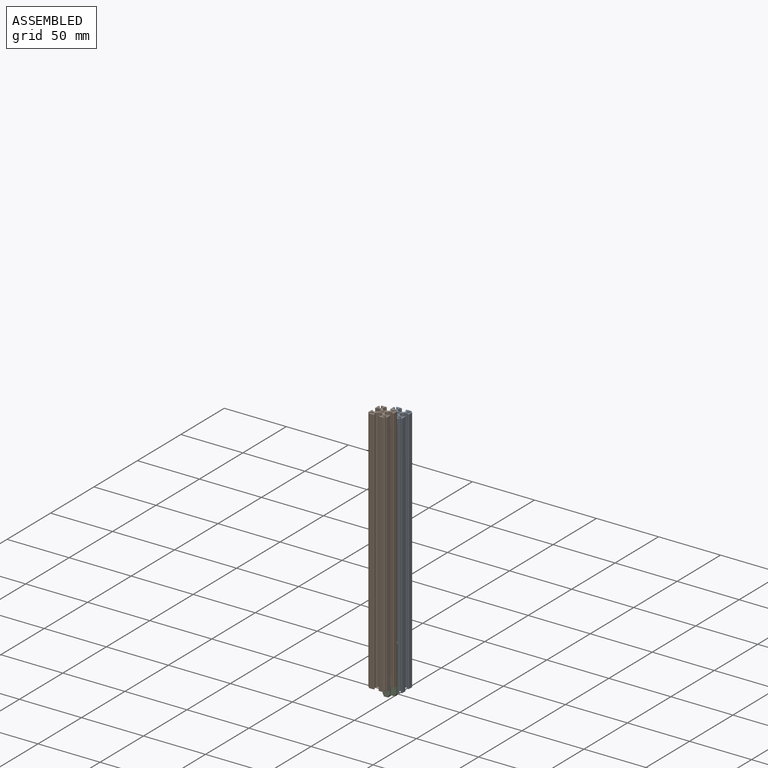
[diagram: assembled view]
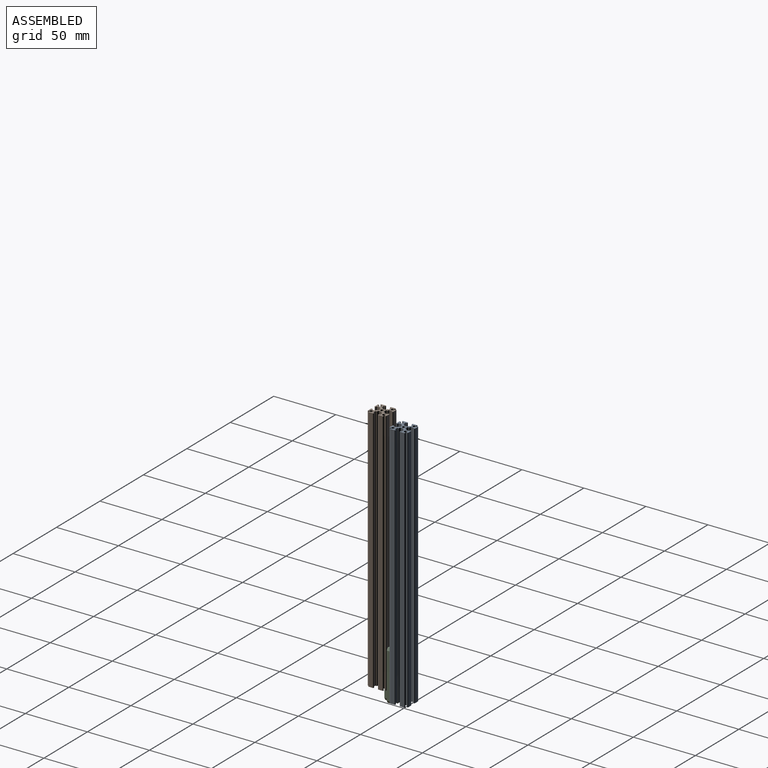
[diagram: assembled view, second angle]
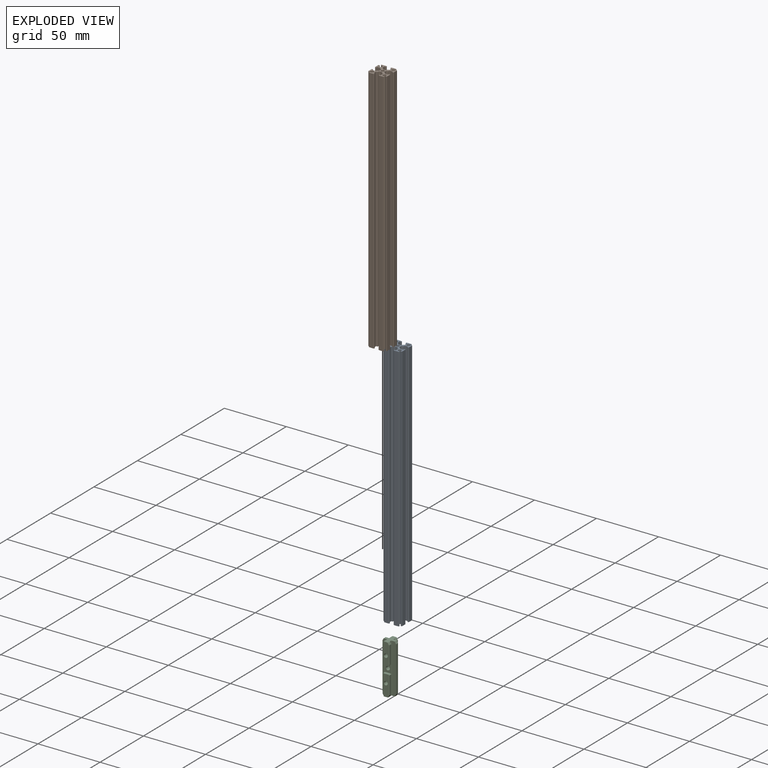
[diagram: exploded view]
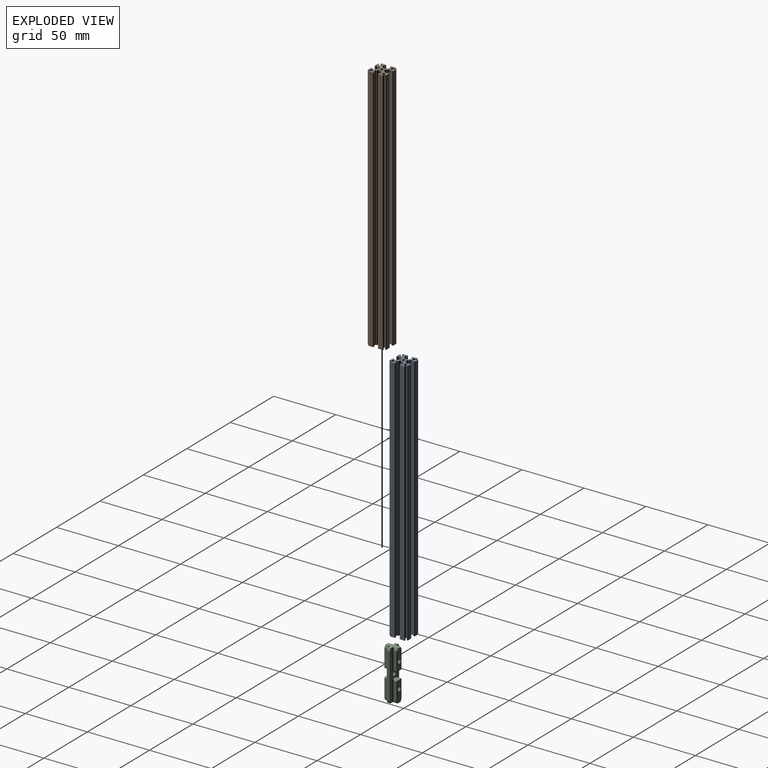
[diagram: exploded view, second angle]
ASSEMBLY  parts=3 mates=3
PART A: 115 faces, bbox 15x15x200 mm
  f0: cylinder r=0.5mm len=200mm, axis (0,0,-1), area 235.6mm2, adj f7,f9,f53,f114
  f1: cylinder r=0.5mm len=200mm, axis (0,0,1), area 235.6mm2, adj f7,f13,f102,f114
  f2: cylinder r=1.25mm len=200mm, axis (0,0,-1), area 1365mm2, adj f7,f104,f105,f114
  f3: cylinder r=1.25mm len=200mm, axis (0,0,-1), area 1365mm2, adj f7,f106,f107,f114
  f4: cylinder r=1.25mm len=200mm, axis (0,0,-1), area 1365mm2, adj f7,f52,f53,f114
  f5: cylinder r=1.25mm len=200mm, axis (0,0,-1), area 1365mm2, adj f7,f102,f103,f114
  f6: cylinder r=1.25mm len=200mm, axis (0,0,1), area 1570.8mm2, adj f7,f114
  f7: plane 15x15mm, normal (0,0,-1), area 90.8mm2, adj f0,f1,f2,f3,f4,f5,f6,f8
  f8: plane 200x3.34mm, normal (1,0,0), area 667.2mm2, adj f7,f70,f112,f114
  f9: plane 200x3.34mm, normal (0,-1,0), area 667.2mm2, adj f0,f7,f77,f114
  f10: plane 200x3.34mm, normal (-1,0,0), area 667.2mm2, adj f7,f58,f109,f114
  f11: plane 200x3.34mm, normal (0,1,0), area 667.2mm2, adj f7,f65,f111,f114
  f12: plane 200x3.34mm, normal (-1,0,0), area 667.2mm2, adj f7,f62,f113,f114
  f13: plane 200x3.34mm, normal (0,-1,0), area 667.2mm2, adj f1,f7,f73,f114
  f14: plane 200x3.34mm, normal (1,0,0), area 667.2mm2, adj f7,f69,f110,f114
  f15: plane 200x3.34mm, normal (0,1,0), area 667.2mm2, adj f7,f63,f108,f114
  f16: plane 200x0.25mm, normal (0,1,0), area 50mm2, adj f7,f55,f80,f114
  f17: plane 200x1.2mm, normal (0,1,0), area 240mm2, adj f7,f86,f87,f114
  f18: plane 200x0.25mm, normal (0,1,0), area 50mm2, adj f7,f67,f79,f114
  f19: plane 200x2.1mm, normal (-1,0,0), area 420mm2, adj f7,f67,f100,f114
  f20: plane 200x0.4mm, normal (0,-1,0), area 80mm2, adj f7,f66,f100,f114
  f21: plane 200x0.2mm, normal (-1,0,0), area 40mm2, adj f7,f65,f66,f114
  f22: plane 200x0.2mm, normal (1,0,0), area 40mm2, adj f7,f63,f64,f114
  f23: plane 200x0.4mm, normal (0,-1,0), area 80mm2, adj f7,f64,f101,f114
  f24: plane 200x2.1mm, normal (1,0,0), area 420mm2, adj f7,f55,f101,f114
  f25: plane 200x0.25mm, normal (-1,0,0), area 50mm2, adj f7,f54,f81,f114
  f26: plane 200x1.2mm, normal (-1,0,0), area 240mm2, adj f7,f88,f89,f114
  f27: plane 200x0.25mm, normal (-1,0,0), area 50mm2, adj f7,f60,f78,f114
  f28: plane 200x2.1mm, normal (0,-1,0), area 420mm2, adj f7,f60,f94,f114
  f29: plane 200x0.4mm, normal (1,0,0), area 80mm2, adj f7,f59,f94,f114
  f30: plane 200x0.2mm, normal (0,-1,0), area 40mm2, adj f7,f58,f59,f114
  f31: plane 200x0.2mm, normal (0,1,0), area 40mm2, adj f7,f61,f62,f114
  f32: plane 200x0.4mm, normal (1,0,0), area 80mm2, adj f7,f61,f95,f114
  f33: plane 200x2.1mm, normal (0,1,0), area 420mm2, adj f7,f54,f95,f114
  f34: plane 200x0.25mm, normal (0,-1,0), area 50mm2, adj f7,f57,f83,f114
  f35: plane 200x1.2mm, normal (0,-1,0), area 240mm2, adj f7,f90,f91,f114
  f36: plane 200x0.25mm, normal (0,-1,0), area 50mm2, adj f7,f75,f82,f114
  f37: plane 200x2.1mm, normal (1,0,0), area 420mm2, adj f7,f75,f96,f114
  f38: plane 200x0.4mm, normal (0,1,0), area 80mm2, adj f7,f76,f96,f114
  f39: plane 200x0.2mm, normal (1,0,0), area 40mm2, adj f7,f76,f77,f114
  f40: plane 200x0.2mm, normal (-1,0,0), area 40mm2, adj f7,f73,f74,f114
  f41: plane 200x0.4mm, normal (0,1,0), area 80mm2, adj f7,f74,f97,f114
  f42: plane 200x2.1mm, normal (-1,0,0), area 420mm2, adj f7,f57,f97,f114
  f43: plane 200x0.25mm, normal (1,0,0), area 50mm2, adj f7,f56,f84,f114
  f44: plane 200x1.2mm, normal (1,0,0), area 240mm2, adj f7,f92,f93,f114
  f45: plane 200x0.25mm, normal (1,0,0), area 50mm2, adj f7,f72,f85,f114
  f46: plane 200x2.1mm, normal (0,1,0), area 420mm2, adj f7,f72,f98,f114
  f47: plane 200x0.4mm, normal (-1,0,0), area 80mm2, adj f7,f71,f98,f114
  f48: plane 200x0.2mm, normal (0,1,0), area 40mm2, adj f7,f70,f71,f114
  f49: plane 200x0.2mm, normal (0,-1,0), area 40mm2, adj f7,f68,f69,f114
  f50: plane 200x0.4mm, normal (-1,0,0), area 80mm2, adj f7,f68,f99,f114
  f51: plane 200x2.1mm, normal (0,-1,0), area 420mm2, adj f7,f56,f99,f114
  f52: plane 200x0.48mm, normal (0.71,-0.71,0), area 136.6mm2, adj f4,f7,f113,f114
  f53: plane 200x0.48mm, normal (-0.71,0.71,0), area 136.6mm2, adj f0,f4,f7,f114
  f54: cylinder r=0.5mm len=200mm, axis (0,0,1), area 157.1mm2, adj f7,f25,f33,f114
  f55: cylinder r=0.5mm len=200mm, axis (0,0,1), area 157.1mm2, adj f7,f16,f24,f114
  f56: cylinder r=0.5mm len=200mm, axis (0,0,1), area 157.1mm2, adj f7,f43,f51,f114
  f57: cylinder r=0.5mm len=200mm, axis (0,0,1), area 157.1mm2, adj f7,f34,f42,f114
  f58: cylinder r=0.5mm len=200mm, axis (0,0,-1), area 157.1mm2, adj f7,f10,f30,f114
  f59: cylinder r=0.5mm len=200mm, axis (0,0,-1), area 157.1mm2, adj f7,f29,f30,f114
  f60: cylinder r=0.5mm len=200mm, axis (0,0,1), area 157.1mm2, adj f7,f27,f28,f114
  f61: cylinder r=0.5mm len=200mm, axis (0,0,-1), area 157.1mm2, adj f7,f31,f32,f114
  f62: cylinder r=0.5mm len=200mm, axis (0,0,-1), area 157.1mm2, adj f7,f12,f31,f114
  f63: cylinder r=0.5mm len=200mm, axis (0,0,-1), area 157.1mm2, adj f7,f15,f22,f114
  f64: cylinder r=0.5mm len=200mm, axis (0,0,-1), area 157.1mm2, adj f7,f22,f23,f114
  f65: cylinder r=0.5mm len=200mm, axis (0,0,-1), area 157.1mm2, adj f7,f11,f21,f114
  f66: cylinder r=0.5mm len=200mm, axis (0,0,-1), area 157.1mm2, adj f7,f20,f21,f114
  f67: cylinder r=0.5mm len=200mm, axis (0,0,1), area 157.1mm2, adj f7,f18,f19,f114
  f68: cylinder r=0.5mm len=200mm, axis (0,0,-1), area 157.1mm2, adj f7,f49,f50,f114
  f69: cylinder r=0.5mm len=200mm, axis (0,0,-1), area 157.1mm2, adj f7,f14,f49,f114
  f70: cylinder r=0.5mm len=200mm, axis (0,0,-1), area 157.1mm2, adj f7,f8,f48,f114
  f71: cylinder r=0.5mm len=200mm, axis (0,0,-1), area 157.1mm2, adj f7,f47,f48,f114
  f72: cylinder r=0.5mm len=200mm, axis (0,0,1), area 157.1mm2, adj f7,f45,f46,f114
  f73: cylinder r=0.5mm len=200mm, axis (0,0,-1), area 157.1mm2, adj f7,f13,f40,f114
  f74: cylinder r=0.5mm len=200mm, axis (0,0,-1), area 157.1mm2, adj f7,f40,f41,f114
  f75: cylinder r=0.5mm len=200mm, axis (0,0,1), area 157.1mm2, adj f7,f36,f37,f114
  f76: cylinder r=0.5mm len=200mm, axis (0,0,-1), area 157.1mm2, adj f7,f38,f39,f114
  f77: cylinder r=0.5mm len=200mm, axis (0,0,-1), area 157.1mm2, adj f7,f9,f39,f114
  f78: cylinder r=0.5mm len=200mm, axis (0,0,-1), area 157.1mm2, adj f7,f27,f88,f114
  f79: cylinder r=0.5mm len=200mm, axis (0,0,-1), area 157.1mm2, adj f7,f18,f86,f114
  f80: cylinder r=0.5mm len=200mm, axis (0,0,-1), area 157.1mm2, adj f7,f16,f87,f114
  f81: cylinder r=0.5mm len=200mm, axis (0,0,-1), area 157.1mm2, adj f7,f25,f89,f114
  f82: cylinder r=0.5mm len=200mm, axis (0,0,-1), area 157.1mm2, adj f7,f36,f90,f114
  f83: cylinder r=0.5mm len=200mm, axis (0,0,-1), area 157.1mm2, adj f7,f34,f91,f114
  f84: cylinder r=0.5mm len=200mm, axis (0,0,-1), area 157.1mm2, adj f7,f43,f92,f114
  f85: cylinder r=0.5mm len=200mm, axis (0,0,-1), area 157.1mm2, adj f7,f45,f93,f114
  f86: cylinder r=1mm len=200mm, axis (0,0,1), area 314.2mm2, adj f7,f17,f79,f114
  f87: cylinder r=1mm len=200mm, axis (0,0,1), area 314.2mm2, adj f7,f17,f80,f114
  f88: cylinder r=1mm len=200mm, axis (0,0,1), area 314.2mm2, adj f7,f26,f78,f114
  f89: cylinder r=1mm len=200mm, axis (0,0,1), area 314.2mm2, adj f7,f26,f81,f114
  f90: cylinder r=1mm len=200mm, axis (0,0,1), area 314.2mm2, adj f7,f35,f82,f114
  f91: cylinder r=1mm len=200mm, axis (0,0,1), area 314.2mm2, adj f7,f35,f83,f114
  f92: cylinder r=1mm len=200mm, axis (0,0,1), area 314.2mm2, adj f7,f44,f84,f114
  f93: cylinder r=1mm len=200mm, axis (0,0,1), area 314.2mm2, adj f7,f44,f85,f114
  f94: cylinder r=0.2mm len=200mm, axis (0,0,1), area 62.8mm2, adj f7,f28,f29,f114
  f95: cylinder r=0.2mm len=200mm, axis (0,0,1), area 62.8mm2, adj f7,f32,f33,f114
  f96: cylinder r=0.2mm len=200mm, axis (0,0,1), area 62.8mm2, adj f7,f37,f38,f114
  f97: cylinder r=0.2mm len=200mm, axis (0,0,1), area 62.8mm2, adj f7,f41,f42,f114
  f98: cylinder r=0.2mm len=200mm, axis (0,0,1), area 62.8mm2, adj f7,f46,f47,f114
  f99: cylinder r=0.2mm len=200mm, axis (0,0,1), area 62.8mm2, adj f7,f50,f51,f114
  f100: cylinder r=0.2mm len=200mm, axis (0,0,1), area 62.8mm2, adj f7,f19,f20,f114
  f101: cylinder r=0.2mm len=200mm, axis (0,0,1), area 62.8mm2, adj f7,f23,f24,f114
  f102: plane 200x0.48mm, normal (0.71,0.71,0), area 136.6mm2, adj f1,f5,f7,f114
  f103: plane 200x0.48mm, normal (-0.71,-0.71,0), area 136.6mm2, adj f5,f7,f112,f114
  f104: plane 200x0.48mm, normal (-0.71,0.71,0), area 136.6mm2, adj f2,f7,f110,f114
  f105: plane 200x0.48mm, normal (0.71,-0.71,0), area 136.6mm2, adj f2,f7,f111,f114
  f106: plane 200x0.48mm, normal (-0.71,-0.71,0), area 136.6mm2, adj f3,f7,f108,f114
  f107: plane 200x0.48mm, normal (0.71,0.71,0), area 136.6mm2, adj f3,f7,f109,f114
  f108: cylinder r=0.5mm len=200mm, axis (0,0,1), area 235.6mm2, adj f7,f15,f106,f114
  f109: cylinder r=0.5mm len=200mm, axis (0,0,-1), area 235.6mm2, adj f7,f10,f107,f114
  f110: cylinder r=0.5mm len=200mm, axis (0,0,1), area 235.6mm2, adj f7,f14,f104,f114
  f111: cylinder r=0.5mm len=200mm, axis (0,0,-1), area 235.6mm2, adj f7,f11,f105,f114
  f112: cylinder r=0.5mm len=200mm, axis (0,0,-1), area 235.6mm2, adj f7,f8,f103,f114
  f113: cylinder r=0.5mm len=200mm, axis (0,0,1), area 235.6mm2, adj f7,f12,f52,f114
  f114: plane 15x15mm, normal (0,0,1), area 90.8mm2, adj f0,f1,f2,f3,f4,f5,f6,f8
PART B: same geometry as A
PART C: 98 faces, bbox 10.5x11.1x40.6 mm
  f0: cylinder r=1.55mm len=10.3mm, axis (1,0,0), area 100.3mm2, adj f24,f41
  f1: cylinder r=1.55mm len=3.9mm, axis (1,0,0), area 38mm2, adj f51,f62
  f2: cylinder r=1.55mm len=10.3mm, axis (1,0,0), area 100.3mm2, adj f4,f9
  f3: cylinder r=0.4mm len=14.92mm, axis (0,0,-1), area 9.2mm2, adj f4,f39,f81,f90
  f4: plane 16.75x4.7mm, normal (1,0,0), area 69.2mm2, adj f2,f3,f5,f56,f60,f79,f81,f90
  f5: cylinder r=0.4mm len=14.92mm, axis (0,0,-1), area 9.2mm2, adj f4,f43,f79,f97
  f6: cylinder r=0.1mm len=14.41mm, axis (0,0,-1), area 2.2mm2, adj f7,f20,f77,f88
  f7: plane 14.61x2.19mm, normal (0,1,0), area 30.5mm2, adj f6,f8,f69,f77,f88
  f8: cylinder r=0.4mm len=14.92mm, axis (0,0,-1), area 9.2mm2, adj f7,f9,f77,f92
  f9: plane 16.75x4.7mm, normal (-1,0,0), area 69.2mm2, adj f2,f8,f10,f56,f58,f75,f77,f91
  f10: cylinder r=0.4mm len=14.92mm, axis (0,0,-1), area 9.2mm2, adj f9,f11,f75,f91
  f11: plane 14.61x2.19mm, normal (0,-1,0), area 30.5mm2, adj f10,f12,f70,f75,f89
  f12: cylinder r=0.1mm len=14.41mm, axis (0,0,-1), area 2.2mm2, adj f11,f13,f75,f89
  f13: plane 15.19x0.5mm, normal (1,0,0), area 5.9mm2, adj f12,f14,f75,f89
  f14: cylinder r=0.6mm len=16.75mm, axis (0,0,-1), area 15.2mm2, adj f13,f15,f56,f58,f89
  f15: plane 16.75x0.2mm, normal (0,-1,0), area 3.3mm2, adj f14,f16,f56,f58
  f16: cylinder r=0.6mm len=16.75mm, axis (0,0,-1), area 15.8mm2, adj f15,f51,f56,f58
  f17: cylinder r=0.6mm len=16.75mm, axis (0,0,-1), area 15.8mm2, adj f18,f51,f56,f58
  f18: plane 16.75x0.2mm, normal (0,1,0), area 3.3mm2, adj f17,f19,f56,f58
  f19: cylinder r=0.6mm len=16.75mm, axis (0,0,-1), area 15.2mm2, adj f18,f20,f56,f58,f88
  f20: plane 15.19x0.5mm, normal (1,0,0), area 5.9mm2, adj f6,f19,f77,f88
  f21: cylinder r=0.1mm len=14.41mm, axis (0,0,-1), area 2.2mm2, adj f22,f55,f78,f85
  f22: plane 14.61x2.19mm, normal (0,1,0), area 30.5mm2, adj f21,f23,f63,f78,f85
  f23: cylinder r=0.4mm len=14.92mm, axis (0,0,-1), area 9.2mm2, adj f22,f24,f78,f94
  f24: plane 16.75x4.7mm, normal (-1,0,0), area 69.2mm2, adj f0,f23,f25,f57,f59,f76,f78,f93
  f25: cylinder r=0.4mm len=14.92mm, axis (0,0,-1), area 9.2mm2, adj f24,f26,f76,f93
  f26: plane 14.61x2.19mm, normal (0,-1,0), area 30.5mm2, adj f25,f27,f64,f76,f84
  f27: cylinder r=0.1mm len=14.41mm, axis (0,0,-1), area 2.2mm2, adj f26,f28,f76,f84
  f28: plane 15.19x0.5mm, normal (1,0,0), area 5.9mm2, adj f27,f29,f76,f84
  f29: cylinder r=0.6mm len=16.75mm, axis (0,0,-1), area 15.2mm2, adj f28,f30,f57,f59,f84
  f30: plane 16.75x0.2mm, normal (0,-1,0), area 3.3mm2, adj f29,f31,f57,f59
  f31: cylinder r=0.6mm len=16.75mm, axis (0,0,-1), area 15.8mm2, adj f30,f51,f57,f59
  f32: plane 36.54x2.3mm, normal (0,-1,0), area 84mm2, adj f33,f51,f67,f72
  f33: plane 40x3.24mm, normal (1,0,0), area 127.7mm2, adj f32,f34,f56,f57,f67,f72
  f34: cylinder r=0.6mm len=40mm, axis (0,0,-1), area 37.7mm2, adj f33,f35,f56,f57
  f35: plane 40x0.2mm, normal (0,-1,0), area 8mm2, adj f34,f36,f56,f57
  f36: cylinder r=0.6mm len=40mm, axis (0,0,-1), area 36.9mm2, adj f35,f37,f56,f57,f74,f83
  f37: plane 37.57x0.5mm, normal (-1,0,0), area 14.8mm2, adj f36,f38,f74,f83
  f38: cylinder r=0.1mm len=36.5mm, axis (0,0,-1), area 5.7mm2, adj f37,f39,f74,f83
  f39: plane 36.62x2.19mm, normal (0,-1,0), area 61.7mm2, adj f3,f38,f40,f62,f68,f74,f81,f82
  f40: cylinder r=0.4mm len=14.92mm, axis (0,0,-1), area 9.2mm2, adj f39,f41,f82,f95
  f41: plane 16.75x4.7mm, normal (1,0,0), area 69.2mm2, adj f0,f40,f42,f57,f61,f80,f82,f95
  f42: cylinder r=0.4mm len=14.92mm, axis (0,0,-1), area 9.2mm2, adj f41,f43,f80,f96
  f43: plane 36.62x2.19mm, normal (0,1,0), area 61.7mm2, adj f5,f42,f44,f62,f65,f73,f79,f80
  f44: cylinder r=0.1mm len=36.12mm, axis (0,0,-1), area 5.7mm2, adj f43,f45,f86,f87
  f45: plane 36.77x0.5mm, normal (-1,0,0), area 14.5mm2, adj f44,f46,f86,f87
  f46: cylinder r=0.6mm len=40mm, axis (0,0,-1), area 36.6mm2, adj f45,f47,f56,f57,f86,f87
  f47: plane 40x0.2mm, normal (0,1,0), area 8mm2, adj f46,f48,f56,f57
  f48: cylinder r=0.6mm len=40mm, axis (0,0,-1), area 37.7mm2, adj f47,f49,f56,f57
  f49: plane 40x3.24mm, normal (1,0,0), area 127.7mm2, adj f48,f50,f56,f57,f66,f71
  f50: plane 36.54x2.3mm, normal (0,1,0), area 84mm2, adj f49,f51,f66,f71
  f51: plane 40x10.97mm, normal (-1,0,0), area 277.1mm2, adj f1,f16,f17,f31,f32,f50,f52,f56
  f52: cylinder r=0.6mm len=16.75mm, axis (0,0,-1), area 15.8mm2, adj f51,f53,f57,f59
  f53: plane 16.75x0.2mm, normal (0,1,0), area 3.3mm2, adj f52,f54,f57,f59
  f54: cylinder r=0.6mm len=16.75mm, axis (0,0,-1), area 15.2mm2, adj f53,f55,f57,f59,f85
  f55: plane 15.19x0.5mm, normal (1,0,0), area 5.9mm2, adj f21,f54,f78,f85
  f56: plane 10.44x9.11mm, normal (0,0,1), area 48.4mm2, adj f4,f9,f14,f15,f16,f17,f18,f19
  f57: plane 10.44x9.11mm, normal (0,0,-1), area 48.4mm2, adj f24,f29,f30,f31,f33,f34,f35,f36
  f58: plane 4.5x4mm, normal (0,0,-1), area 16.6mm2, adj f9,f14,f15,f16,f17,f18,f19,f51
  f59: plane 4.5x4mm, normal (0,0,1), area 16.6mm2, adj f24,f29,f30,f31,f51,f52,f53,f54
  f60: plane 4.5x2.4mm, normal (0,0,-1), area 10.8mm2, adj f4,f62,f79,f81
  f61: plane 4.5x2.4mm, normal (0,0,1), area 10.8mm2, adj f41,f62,f80,f82
  f62: plane 7.5x5.5mm, normal (1,0,0), area 28.7mm2, adj f1,f39,f43,f60,f61,f79,f80,f81
  f63: plane 2.29x1.76mm, normal (0,0.87,-0.5), area 3.8mm2, adj f22,f57,f85,f94
  f64: plane 2.29x1.76mm, normal (0,-0.87,-0.5), area 3.8mm2, adj f26,f57,f84,f93
  f65: plane 2.29x1.76mm, normal (0,0.87,-0.5), area 3.8mm2, adj f43,f57,f86,f96
  f66: plane 2.3x1.73mm, normal (0,0.87,-0.5), area 4.6mm2, adj f49,f50,f51,f57
  f67: plane 2.3x1.73mm, normal (0,-0.87,-0.5), area 4.6mm2, adj f32,f33,f51,f57
  f68: plane 2.29x1.76mm, normal (0,-0.87,-0.5), area 3.8mm2, adj f39,f57,f83,f95
  f69: plane 2.29x1.76mm, normal (0,0.87,0.5), area 3.8mm2, adj f7,f56,f88,f92
  f70: plane 2.29x1.76mm, normal (0,-0.87,0.5), area 3.8mm2, adj f11,f56,f89,f91
  f71: plane 2.3x1.73mm, normal (0,0.87,0.5), area 4.6mm2, adj f49,f50,f51,f56
  f72: plane 2.3x1.73mm, normal (0,-0.87,0.5), area 4.6mm2, adj f32,f33,f51,f56
  f73: plane 2.29x1.76mm, normal (0,0.87,0.5), area 3.8mm2, adj f43,f56,f87,f97
  f74: plane 2.59x1.85mm, normal (0,-0.87,0.5), area 4.5mm2, adj f36,f37,f38,f39,f56,f90
  f75: plane 2.77x0.67mm, normal (0,-0.71,-0.71), area 1.8mm2, adj f9,f10,f11,f12,f13,f58
  f76: plane 2.77x0.67mm, normal (0,-0.71,0.71), area 1.8mm2, adj f24,f25,f26,f27,f28,f59
  f77: plane 2.77x0.67mm, normal (0,0.71,-0.71), area 1.8mm2, adj f6,f7,f8,f9,f20,f58
  f78: plane 2.77x0.67mm, normal (0,0.71,0.71), area 1.8mm2, adj f21,f22,f23,f24,f55,f59
  f79: plane 2.57x0.67mm, normal (0,0.71,-0.71), area 1.6mm2, adj f4,f5,f43,f60,f62
  f80: plane 2.57x0.67mm, normal (0,0.71,0.71), area 1.6mm2, adj f41,f42,f43,f61,f62
  f81: plane 2.57x0.67mm, normal (0,-0.71,-0.71), area 1.6mm2, adj f3,f4,f39,f60,f62
  f82: plane 2.57x0.67mm, normal (0,-0.71,0.71), area 1.6mm2, adj f39,f40,f41,f61,f62
  f83: bspline ~2.35x1.24mm, area 1.1mm2, adj f36,f37,f38,f39,f57,f68
  f84: bspline ~2.35x1.24mm, area 1.1mm2, adj f26,f27,f28,f29,f57,f64
  f85: bspline ~2.35x1.24mm, area 1.1mm2, adj f21,f22,f54,f55,f57,f63
  f86: bspline ~2.35x1.24mm, area 1.1mm2, adj f43,f44,f45,f46,f57,f65
  f87: bspline ~2.35x1.24mm, area 1.1mm2, adj f43,f44,f45,f46,f56,f73
  f88: bspline ~2.35x1.24mm, area 1.1mm2, adj f6,f7,f19,f20,f56,f69
  f89: bspline ~2.35x1.24mm, area 1.1mm2, adj f11,f12,f13,f14,f56,f70
  f90: cylinder r=0.4mm len=2.13mm, axis (0,0.5,0.87), area 1.3mm2, adj f3,f4,f56,f74
  f91: cylinder r=0.4mm len=2.13mm, axis (0,-0.5,-0.87), area 1.3mm2, adj f9,f10,f56,f70
  f92: cylinder r=0.4mm len=2.13mm, axis (0,-0.5,0.87), area 1.3mm2, adj f8,f9,f56,f69
  f93: cylinder r=0.4mm len=2.13mm, axis (0,-0.5,0.87), area 1.3mm2, adj f24,f25,f57,f64
  f94: cylinder r=0.4mm len=2.13mm, axis (0,-0.5,-0.87), area 1.3mm2, adj f23,f24,f57,f63
  f95: cylinder r=0.4mm len=2.13mm, axis (0,0.5,-0.87), area 1.3mm2, adj f40,f41,f57,f68
  f96: cylinder r=0.4mm len=2.13mm, axis (0,0.5,0.87), area 1.3mm2, adj f41,f42,f57,f65
  f97: cylinder r=0.4mm len=2.13mm, axis (0,0.5,-0.87), area 1.3mm2, adj f4,f5,f56,f73
PLACE A at identity fixed
PLACE B rot(axis=(0,0,-1),90deg) t=(0,-17.5,7.55)mm
PLACE C rot(axis=(0,0,-1),90deg) t=(0,-8.75,18.36)mm
MATE cylindrical C.f8 <-> A.f57  axis (0,0,-1) through (2.35,-4,0)mm
MATE cylindrical C.f10 <-> A.f75  axis (0,0,-1) through (-2.35,-4,0)mm
MATE fastened C.f3 <-> B.f54  axis (0,0,-1) through (-2.35,-13.5,7.55)mm
